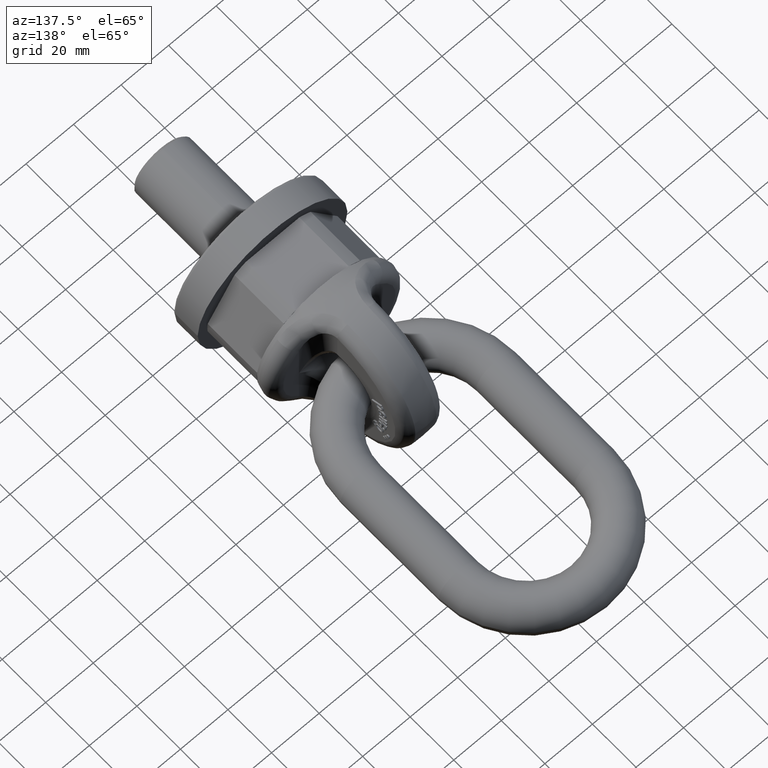
[diagram: clean part render]
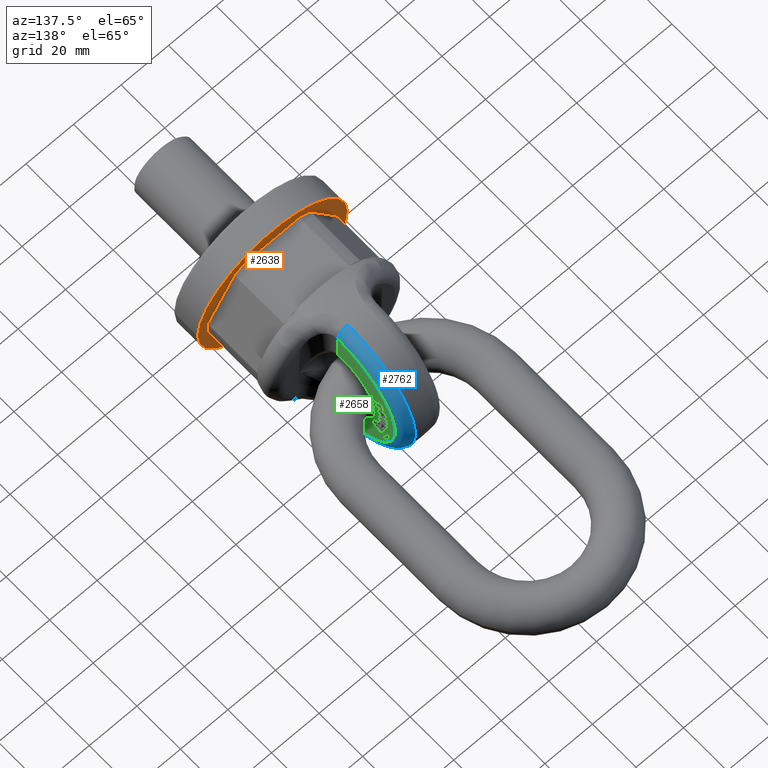
[diagram: same view with three faces highlighted in distinct colors, each labeled with its STEP entity id]
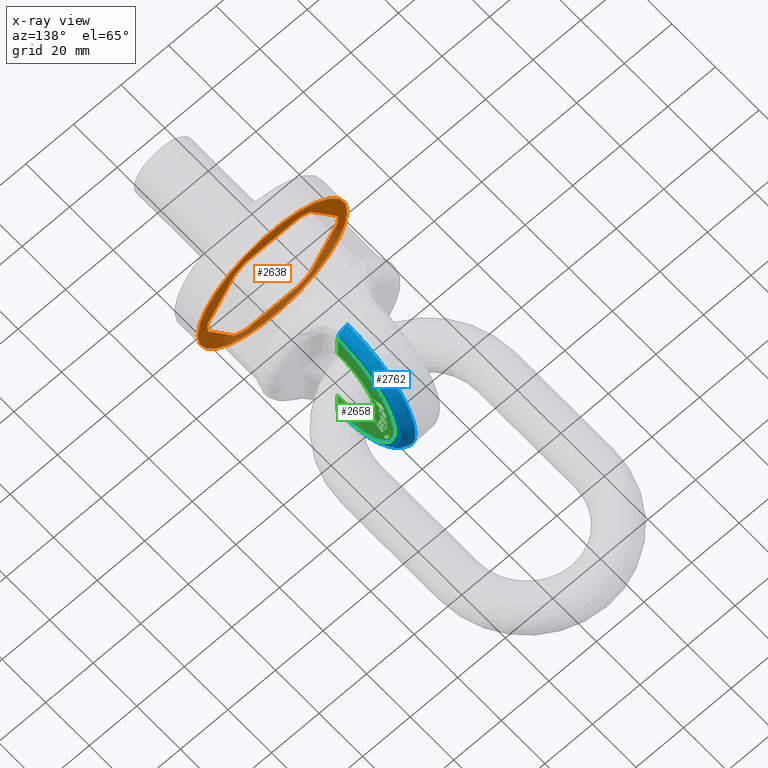
[diagram: x-ray of the same camera — body ghosted, the three highlighted faces saturated]
A machine part, auxiliary view with three faces highlighted in distinct colors.
The next image is the same camera in x-ray (body ghosted, the three faces saturated) — at least one of them is partly hidden behind the body in this view.
Their STEP definitions:

[orange] entity #2638 — the highlighted planar face has unit normal (-0, 1, 0).
#2033=LINE('',#6569,#2289);
#2034=LINE('',#6574,#2290);
#2035=LINE('',#6578,#2291);
#2036=LINE('',#6582,#2292);
#2037=LINE('',#6586,#2293);
#2038=LINE('',#6590,#2294);
#2289=VECTOR('',#5811,1.);
#2290=VECTOR('',#5814,1.);
#2291=VECTOR('',#5817,1.);
#2292=VECTOR('',#5820,1.);
#2293=VECTOR('',#5823,1.);
#2294=VECTOR('',#5826,1.);
#2638=ADVANCED_FACE('',(#2987,#2988),#2881,.T.);
#2881=PLANE('',#5606);
#2987=FACE_BOUND('',#3059,.T.);
#2988=FACE_BOUND('',#3060,.T.);
#3059=EDGE_LOOP('',(#3345));
#3060=EDGE_LOOP('',(#3346,#3347,#3348,#3349,#3350,#3351,#3352,#3353,#3354,
#3355,#3356,#3357));
#3345=ORIENTED_EDGE('',*,*,#4935,.F.);
#3346=ORIENTED_EDGE('',*,*,#4936,.F.);
#3347=ORIENTED_EDGE('',*,*,#4937,.T.);
#3348=ORIENTED_EDGE('',*,*,#4938,.F.);
#3349=ORIENTED_EDGE('',*,*,#4939,.T.);
#3350=ORIENTED_EDGE('',*,*,#4940,.F.);
#3351=ORIENTED_EDGE('',*,*,#4941,.T.);
#3352=ORIENTED_EDGE('',*,*,#4942,.F.);
#3353=ORIENTED_EDGE('',*,*,#4943,.T.);
#3354=ORIENTED_EDGE('',*,*,#4944,.F.);
#3355=ORIENTED_EDGE('',*,*,#4945,.T.);
#3356=ORIENTED_EDGE('',*,*,#4946,.F.);
#3357=ORIENTED_EDGE('',*,*,#4947,.T.);
#4537=VERTEX_POINT('',#6568);
#4538=VERTEX_POINT('',#6570);
#4539=VERTEX_POINT('',#6571);
#4540=VERTEX_POINT('',#6573);
#4541=VERTEX_POINT('',#6575);
#4542=VERTEX_POINT('',#6577);
#4543=VERTEX_POINT('',#6579);
#4544=VERTEX_POINT('',#6581);
#4545=VERTEX_POINT('',#6583);
#4546=VERTEX_POINT('',#6585);
#4547=VERTEX_POINT('',#6587);
#4548=VERTEX_POINT('',#6589);
#4549=VERTEX_POINT('',#6591);
#4935=EDGE_CURVE('',#4537,#4537,#5531,.T.);
#4936=EDGE_CURVE('',#4538,#4539,#2033,.T.);
#4937=EDGE_CURVE('',#4538,#4540,#5532,.T.);
#4938=EDGE_CURVE('',#4541,#4540,#2034,.T.);
#4939=EDGE_CURVE('',#4541,#4542,#5533,.T.);
#4940=EDGE_CURVE('',#4543,#4542,#2035,.T.);
#4941=EDGE_CURVE('',#4543,#4544,#5534,.T.);
#4942=EDGE_CURVE('',#4545,#4544,#2036,.T.);
#4943=EDGE_CURVE('',#4545,#4546,#5535,.T.);
#4944=EDGE_CURVE('',#4547,#4546,#2037,.T.);
#4945=EDGE_CURVE('',#4547,#4548,#5536,.T.);
#4946=EDGE_CURVE('',#4549,#4548,#2038,.T.);
#4947=EDGE_CURVE('',#4549,#4539,#5537,.T.);
#5531=CIRCLE('',#5599,31.5);
#5532=CIRCLE('',#5600,27.4241377865072);
#5533=CIRCLE('',#5601,27.4241377865072);
#5534=CIRCLE('',#5602,27.4241377865072);
#5535=CIRCLE('',#5603,27.4241377865072);
#5536=CIRCLE('',#5604,27.4241377865072);
#5537=CIRCLE('',#5605,27.4241377865072);
#5599=AXIS2_PLACEMENT_3D('',#6567,#5809,#5810);
#5600=AXIS2_PLACEMENT_3D('',#6572,#5812,#5813);
#5601=AXIS2_PLACEMENT_3D('',#6576,#5815,#5816);
#5602=AXIS2_PLACEMENT_3D('',#6580,#5818,#5819);
#5603=AXIS2_PLACEMENT_3D('',#6584,#5821,#5822);
#5604=AXIS2_PLACEMENT_3D('',#6588,#5824,#5825);
#5605=AXIS2_PLACEMENT_3D('',#6592,#5827,#5828);
#5606=AXIS2_PLACEMENT_3D('',#6593,#5829,#5830);
#5809=DIRECTION('',(4.23223526175924E-17,-1.,0.));
#5810=DIRECTION('',(1.,5.50705865389463E-17,0.));
#5811=DIRECTION('',(0.499999999999999,2.11611763087961E-17,-0.866025403784439));
#5812=DIRECTION('',(4.23223526175924E-17,-1.,0.));
#5813=DIRECTION('',(-1.,-6.32553515257751E-17,0.));
#5814=DIRECTION('',(1.,4.23223526175924E-17,0.));
#5815=DIRECTION('',(4.23223526175924E-17,-1.,0.));
#5816=DIRECTION('',(-1.,-6.32553515257751E-17,0.));
#5817=DIRECTION('',(0.499999999999999,2.11611763087961E-17,0.866025403784439));
#5818=DIRECTION('',(4.23223526175924E-17,-1.,0.));
#5819=DIRECTION('',(-1.,-6.32553515257751E-17,0.));
#5820=DIRECTION('',(-0.499999999999999,-2.11611763087961E-17,0.866025403784439));
#5821=DIRECTION('',(4.23223526175924E-17,-1.,0.));
#5822=DIRECTION('',(-1.,-6.32553515257751E-17,0.));
#5823=DIRECTION('',(-1.,-4.23223526175924E-17,0.));
#5824=DIRECTION('',(4.23223526175924E-17,-1.,0.));
#5825=DIRECTION('',(-1.,-6.32553515257751E-17,0.));
#5826=DIRECTION('',(-0.499999999999999,-2.11611763087961E-17,-0.866025403784439));
#5827=DIRECTION('',(4.23223526175924E-17,-1.,0.));
#5828=DIRECTION('',(-1.,-6.32553515257751E-17,0.));
#5829=DIRECTION('',(-4.23223526175924E-17,1.,0.));
#5830=DIRECTION('',(-1.,-4.16333634234434E-17,0.));
#6567=CARTESIAN_POINT('',(-4.79653329666047E-16,11.3333333333333,0.));
#6568=CARTESIAN_POINT('',(31.5,11.3333333333333,0.));
#6569=CARTESIAN_POINT('',(29.5256350946109,11.3333333333333,-1.13990010960493));
#6570=CARTESIAN_POINT('',(16.0140729035823,11.3333333333333,22.2628120948833));
#6571=CARTESIAN_POINT('',(27.2871972856396,11.3333333333333,2.73718790511658));
#6572=CARTESIAN_POINT('',(-2.77586607806733E-16,11.3333333333333,0.));
#6573=CARTESIAN_POINT('',(11.2731243820572,11.3333333333333,25.));
#6574=CARTESIAN_POINT('',(31.5,11.3333333333333,25.));
#6575=CARTESIAN_POINT('',(-11.2731243820572,11.3333333333333,25.));
#6576=CARTESIAN_POINT('',(-2.77586607806733E-16,11.3333333333333,0.));
#6577=CARTESIAN_POINT('',(-16.0140729035823,11.3333333333333,22.2628120948833));
#6578=CARTESIAN_POINT('',(-13.775635094611,11.3333333333333,26.1399001096048));
#6579=CARTESIAN_POINT('',(-27.2871972856396,11.3333333333333,2.73718790511658));
#6580=CARTESIAN_POINT('',(-2.77586607806733E-16,11.3333333333333,0.));
#6581=CARTESIAN_POINT('',(-27.2871972856396,11.3333333333333,-2.73718790511658));
#6582=CARTESIAN_POINT('',(-13.775635094611,11.3333333333333,-26.1399001096048));
#6583=CARTESIAN_POINT('',(-16.0140729035823,11.3333333333333,-22.2628120948833));
#6584=CARTESIAN_POINT('',(-2.77586607806733E-16,11.3333333333333,0.));
#6585=CARTESIAN_POINT('',(-11.2731243820572,11.3333333333333,-25.));
#6586=CARTESIAN_POINT('',(31.5,11.3333333333333,-25.));
#6587=CARTESIAN_POINT('',(11.2731243820572,11.3333333333333,-25.));
#6588=CARTESIAN_POINT('',(-2.77586607806733E-16,11.3333333333333,0.));
#6589=CARTESIAN_POINT('',(16.0140729035823,11.3333333333333,-22.2628120948833));
#6590=CARTESIAN_POINT('',(29.5256350946109,11.3333333333333,1.13990010960493));
#6591=CARTESIAN_POINT('',(27.2871972856396,11.3333333333333,-2.73718790511658));
#6592=CARTESIAN_POINT('',(-2.77586607806733E-16,11.3333333333333,0.));
#6593=CARTESIAN_POINT('',(31.5,11.3333333333333,0.));

[blue] entity #2762 — the highlighted toroidal blend (fillet) surface has major radius 26.4858 mm and minor (blend) radius 4.75 mm.
#1790=TOROIDAL_SURFACE('',#5714,26.4858452762981,4.75);
#1906=FACE_OUTER_BOUND('',#3206,.T.);
#2762=ADVANCED_FACE('',(#1906),#1790,.T.);
#3206=EDGE_LOOP('',(#3964,#3965,#3966,#3967));
#3964=ORIENTED_EDGE('',*,*,#5253,.T.);
#3965=ORIENTED_EDGE('',*,*,#5064,.F.);
#3966=ORIENTED_EDGE('',*,*,#5256,.F.);
#3967=ORIENTED_EDGE('',*,*,#5003,.F.);
#4590=VERTEX_POINT('',#6781);
#4593=VERTEX_POINT('',#6786);
#4651=VERTEX_POINT('',#7037);
#4652=VERTEX_POINT('',#7039);
#5003=EDGE_CURVE('',#4593,#4590,#5552,.T.);
#5064=EDGE_CURVE('',#4651,#4652,#5556,.T.);
#5253=EDGE_CURVE('',#4593,#4652,#5566,.T.);
#5256=EDGE_CURVE('',#4590,#4651,#5569,.T.);
#5552=CIRCLE('',#5640,26.4858452762981);
#5556=CIRCLE('',#5647,31.188939297323);
#5566=CIRCLE('',#5710,4.75);
#5569=CIRCLE('',#5713,4.75);
#5640=AXIS2_PLACEMENT_3D('',#6787,#5923,#5924);
#5647=AXIS2_PLACEMENT_3D('',#7038,#5965,#5966);
#5710=AXIS2_PLACEMENT_3D('',#8088,#6217,#6218);
#5713=AXIS2_PLACEMENT_3D('',#8127,#6223,#6224);
#5714=AXIS2_PLACEMENT_3D('',#8128,#6225,#6226);
#5923=DIRECTION('',(1.,-3.03576608295941E-16,0.));
#5924=DIRECTION('',(3.27481237219413E-16,1.,0.));
#5965=DIRECTION('',(-1.,3.03576608295941E-16,0.));
#5966=DIRECTION('',(-3.05909060481944E-16,-1.,0.));
#6217=DIRECTION('',(0.,1.,0.));
#6218=DIRECTION('',(0.,0.,1.));
#6223=DIRECTION('',(0.,-1.,0.));
#6224=DIRECTION('',(0.,0.,-1.));
#6225=DIRECTION('',(1.,-3.03576608295941E-16,0.));
#6226=DIRECTION('',(3.05449685560845E-16,1.,0.));
#6781=CARTESIAN_POINT('',(8.49999999999999,50.5,26.4858452762981));
#6786=CARTESIAN_POINT('',(8.49999999999999,50.5,-26.4858452762981));
#6787=CARTESIAN_POINT('',(8.5,50.5,0.));
#7037=CARTESIAN_POINT('',(4.41588785046729,50.5,31.188939297323));
#7038=CARTESIAN_POINT('',(4.41588785046729,50.5,0.));
#7039=CARTESIAN_POINT('',(4.41588785046729,50.5,-31.188939297323));
#8088=CARTESIAN_POINT('',(3.75,50.5,-26.4858452762981));
#8127=CARTESIAN_POINT('',(3.75,50.5,26.4858452762981));
#8128=CARTESIAN_POINT('',(3.75,50.5,0.));

[green] entity #2658 — the highlighted planar face has unit normal (1, -0, 0).
#308=B_SPLINE_CURVE_WITH_KNOTS('',3,(#6660,#6661,#6662,#6663,#6664,#6665),
 .UNSPECIFIED.,.F.,.F.,(4,2,4),(0.,0.670501232539036,1.),.UNSPECIFIED.);
#309=B_SPLINE_CURVE_WITH_KNOTS('',3,(#6667,#6668,#6669,#6670),
 .UNSPECIFIED.,.F.,.F.,(4,4),(0.,1.),.UNSPECIFIED.);
#310=B_SPLINE_CURVE_WITH_KNOTS('',3,(#6672,#6673,#6674,#6675,#6676,#6677),
 .UNSPECIFIED.,.F.,.F.,(4,2,4),(0.,0.470198675496683,1.),.UNSPECIFIED.);
#311=B_SPLINE_CURVE_WITH_KNOTS('',3,(#6679,#6680,#6681,#6682),
 .UNSPECIFIED.,.F.,.F.,(4,4),(0.,1.),.UNSPECIFIED.);
#312=B_SPLINE_CURVE_WITH_KNOTS('',3,(#6686,#6687,#6688,#6689),
 .UNSPECIFIED.,.F.,.F.,(4,4),(0.,1.),.UNSPECIFIED.);
#313=B_SPLINE_CURVE_WITH_KNOTS('',3,(#6691,#6692,#6693,#6694,#6695,#6696),
 .UNSPECIFIED.,.F.,.F.,(4,2,4),(0.,0.444196428571435,1.),.UNSPECIFIED.);
#314=B_SPLINE_CURVE_WITH_KNOTS('',3,(#6698,#6699,#6700,#6701,#6702,#6703),
 .UNSPECIFIED.,.F.,.F.,(4,2,4),(0.,0.499999999999985,1.),.UNSPECIFIED.);
#315=B_SPLINE_CURVE_WITH_KNOTS('',3,(#6705,#6706,#6707,#6708,#6709,#6710,
#6711,#6712,#6713,#6714,#6715,#6716,#6717,#6718),.UNSPECIFIED.,.F.,.F.,
(4,2,2,2,2,2,4),(0.,0.149537296690972,0.323681996634889,0.497826696578806,
0.672812675266409,0.847798653954011,1.),.UNSPECIFIED.);
#316=B_SPLINE_CURVE_WITH_KNOTS('',3,(#6723,#6724,#6725,#6726),
 .UNSPECIFIED.,.F.,.F.,(4,4),(0.,1.),.UNSPECIFIED.);
#317=B_SPLINE_CURVE_WITH_KNOTS('',3,(#6731,#6732,#6733,#6734),
 .UNSPECIFIED.,.F.,.F.,(4,4),(0.,1.),.UNSPECIFIED.);
#318=B_SPLINE_CURVE_WITH_KNOTS('',3,(#6736,#6737,#6738,#6739,#6740,#6741),
 .UNSPECIFIED.,.F.,.F.,(4,2,4),(0.,0.565320665083137,1.),.UNSPECIFIED.);
#319=B_SPLINE_CURVE_WITH_KNOTS('',3,(#6743,#6744,#6745,#6746),
 .UNSPECIFIED.,.F.,.F.,(4,4),(0.,1.),.UNSPECIFIED.);
#320=B_SPLINE_CURVE_WITH_KNOTS('',3,(#6750,#6751,#6752,#6753),
 .UNSPECIFIED.,.F.,.F.,(4,4),(0.,1.),.UNSPECIFIED.);
#321=B_SPLINE_CURVE_WITH_KNOTS('',3,(#6755,#6756,#6757,#6758,#6759,#6760),
 .UNSPECIFIED.,.F.,.F.,(4,2,4),(0.,0.429530201342285,1.),.UNSPECIFIED.);
#322=B_SPLINE_CURVE_WITH_KNOTS('',3,(#6762,#6763,#6764,#6765,#6766,#6767,
#6768,#6769,#6770,#6771,#6772,#6773),.UNSPECIFIED.,.F.,.F.,(4,2,2,2,2,4),
(0.,0.25386618568364,0.504362466247584,0.754858746811529,0.877429373405763,
1.),.UNSPECIFIED.);
#323=B_SPLINE_CURVE_WITH_KNOTS('',3,(#6797,#6798,#6799,#6800),
 .UNSPECIFIED.,.F.,.F.,(4,4),(0.,1.),.UNSPECIFIED.);
#324=B_SPLINE_CURVE_WITH_KNOTS('',3,(#6802,#6803,#6804,#6805),
 .UNSPECIFIED.,.F.,.F.,(4,4),(0.,1.),.UNSPECIFIED.);
#325=B_SPLINE_CURVE_WITH_KNOTS('',3,(#6827,#6828,#6829,#6830),
 .UNSPECIFIED.,.F.,.F.,(4,4),(0.,1.),.UNSPECIFIED.);
#326=B_SPLINE_CURVE_WITH_KNOTS('',3,(#6835,#6836,#6837,#6838),
 .UNSPECIFIED.,.F.,.F.,(4,4),(0.,1.),.UNSPECIFIED.);
#327=B_SPLINE_CURVE_WITH_KNOTS('',3,(#6843,#6844,#6845,#6846),
 .UNSPECIFIED.,.F.,.F.,(4,4),(0.,1.),.UNSPECIFIED.);
#328=B_SPLINE_CURVE_WITH_KNOTS('',3,(#6848,#6849,#6850,#6851,#6852,#6853,
#6854,#6855,#6856,#6857),.UNSPECIFIED.,.F.,.F.,(4,2,2,2,4),(0.,0.296954694318537,
0.533565653962718,0.771641518085912,1.),.UNSPECIFIED.);
#329=B_SPLINE_CURVE_WITH_KNOTS('',3,(#6859,#6860,#6861,#6862),
 .UNSPECIFIED.,.F.,.F.,(4,4),(0.,1.),.UNSPECIFIED.);
#330=B_SPLINE_CURVE_WITH_KNOTS('',3,(#6866,#6867,#6868,#6869),
 .UNSPECIFIED.,.F.,.F.,(4,4),(0.,1.),.UNSPECIFIED.);
#331=B_SPLINE_CURVE_WITH_KNOTS('',3,(#6871,#6872,#6873,#6874),
 .UNSPECIFIED.,.F.,.F.,(4,4),(0.,1.),.UNSPECIFIED.);
#332=B_SPLINE_CURVE_WITH_KNOTS('',3,(#6876,#6877,#6878,#6879),
 .UNSPECIFIED.,.F.,.F.,(4,4),(0.,1.),.UNSPECIFIED.);
#333=B_SPLINE_CURVE_WITH_KNOTS('',3,(#6881,#6882,#6883,#6884),
 .UNSPECIFIED.,.F.,.F.,(4,4),(0.,1.),.UNSPECIFIED.);
#334=B_SPLINE_CURVE_WITH_KNOTS('',3,(#6886,#6887,#6888,#6889,#6890,#6891),
 .UNSPECIFIED.,.F.,.F.,(4,2,4),(0.,0.440217391304348,1.),.UNSPECIFIED.);
#335=B_SPLINE_CURVE_WITH_KNOTS('',3,(#6893,#6894,#6895,#6896),
 .UNSPECIFIED.,.F.,.F.,(4,4),(0.,1.),.UNSPECIFIED.);
#336=B_SPLINE_CURVE_WITH_KNOTS('',3,(#6900,#6901,#6902,#6903),
 .UNSPECIFIED.,.F.,.F.,(4,4),(0.,1.),.UNSPECIFIED.);
#337=B_SPLINE_CURVE_WITH_KNOTS('',3,(#6905,#6906,#6907,#6908,#6909,#6910),
 .UNSPECIFIED.,.F.,.F.,(4,2,4),(0.,0.523876404494379,1.),.UNSPECIFIED.);
#338=B_SPLINE_CURVE_WITH_KNOTS('',3,(#6912,#6913,#6914,#6915),
 .UNSPECIFIED.,.F.,.F.,(4,4),(0.,1.),.UNSPECIFIED.);
#339=B_SPLINE_CURVE_WITH_KNOTS('',3,(#6917,#6918,#6919,#6920,#6921,#6922,
#6923,#6924),.UNSPECIFIED.,.F.,.F.,(4,2,2,4),(0.,0.269230769230768,0.527644230769233,
1.),.UNSPECIFIED.);
#340=B_SPLINE_CURVE_WITH_KNOTS('',3,(#6928,#6929,#6930,#6931),
 .UNSPECIFIED.,.F.,.F.,(4,4),(0.,1.),.UNSPECIFIED.);
#341=B_SPLINE_CURVE_WITH_KNOTS('',3,(#6933,#6934,#6935,#6936),
 .UNSPECIFIED.,.F.,.F.,(4,4),(0.,1.),.UNSPECIFIED.);
#342=B_SPLINE_CURVE_WITH_KNOTS('',3,(#6938,#6939,#6940,#6941,#6942,#6943,
#6944,#6945,#6946,#6947),.UNSPECIFIED.,.F.,.F.,(4,2,2,2,4),(0.,0.245990994549331,
0.507925849856491,0.76986070516365,1.),.UNSPECIFIED.);
#2057=LINE('',#6657,#2313);
#2058=LINE('',#6684,#2314);
#2059=LINE('',#6720,#2315);
#2060=LINE('',#6722,#2316);
#2061=LINE('',#6729,#2317);
#2062=LINE('',#6748,#2318);
#2063=LINE('',#6780,#2319);
#2064=LINE('',#6785,#2320);
#2065=LINE('',#6788,#2321);
#2066=LINE('',#6791,#2322);
#2067=LINE('',#6793,#2323);
#2068=LINE('',#6795,#2324);
#2069=LINE('',#6807,#2325);
#2070=LINE('',#6809,#2326);
#2071=LINE('',#6811,#2327);
#2072=LINE('',#6813,#2328);
#2073=LINE('',#6815,#2329);
#2074=LINE('',#6817,#2330);
#2075=LINE('',#6819,#2331);
#2076=LINE('',#6821,#2332);
#2077=LINE('',#6823,#2333);
#2078=LINE('',#6825,#2334);
#2079=LINE('',#6832,#2335);
#2080=LINE('',#6834,#2336);
#2081=LINE('',#6841,#2337);
#2082=LINE('',#6864,#2338);
#2083=LINE('',#6898,#2339);
#2084=LINE('',#6925,#2340);
#2085=LINE('',#6949,#2341);
#2086=LINE('',#6951,#2342);
#2087=LINE('',#6953,#2343);
#2088=LINE('',#6955,#2344);
#2089=LINE('',#6957,#2345);
#2090=LINE('',#6959,#2346);
#2313=VECTOR('',#5907,1.);
#2314=VECTOR('',#5908,1.);
#2315=VECTOR('',#5909,1.);
#2316=VECTOR('',#5910,1.);
#2317=VECTOR('',#5911,1.);
#2318=VECTOR('',#5912,1.);
#2319=VECTOR('',#5919,1.);
#2320=VECTOR('',#5922,1.);
#2321=VECTOR('',#5925,1.);
#2322=VECTOR('',#5926,1.);
#2323=VECTOR('',#5927,1.);
#2324=VECTOR('',#5928,1.);
#2325=VECTOR('',#5929,1.);
#2326=VECTOR('',#5930,1.);
#2327=VECTOR('',#5931,1.);
#2328=VECTOR('',#5932,1.);
#2329=VECTOR('',#5933,1.);
#2330=VECTOR('',#5934,1.);
#2331=VECTOR('',#5935,1.);
#2332=VECTOR('',#5936,1.);
#2333=VECTOR('',#5937,1.);
#2334=VECTOR('',#5938,1.);
#2335=VECTOR('',#5939,1.);
#2336=VECTOR('',#5940,1.);
#2337=VECTOR('',#5941,1.);
#2338=VECTOR('',#5942,1.);
#2339=VECTOR('',#5943,1.);
#2340=VECTOR('',#5944,1.);
#2341=VECTOR('',#5945,1.);
#2342=VECTOR('',#5946,1.);
#2343=VECTOR('',#5947,1.);
#2344=VECTOR('',#5948,1.);
#2345=VECTOR('',#5949,1.);
#2346=VECTOR('',#5950,1.);
#2658=ADVANCED_FACE('',(#2999,#3000,#3001,#3002,#3003,#3004,#3005,#3006,
#3007),#2890,.T.);
#2890=PLANE('',#5641);
#2999=FACE_BOUND('',#3085,.T.);
#3000=FACE_BOUND('',#3086,.T.);
#3001=FACE_BOUND('',#3087,.T.);
#3002=FACE_BOUND('',#3088,.T.);
#3003=FACE_BOUND('',#3089,.T.);
#3004=FACE_BOUND('',#3090,.T.);
#3005=FACE_BOUND('',#3091,.T.);
#3006=FACE_BOUND('',#3092,.T.);
#3007=FACE_BOUND('',#3093,.T.);
#3085=EDGE_LOOP('',(#3429,#3430,#3431,#3432,#3433,#3434,#3435,#3436,#3437,
#3438,#3439,#3440));
#3086=EDGE_LOOP('',(#3441,#3442,#3443,#3444,#3445,#3446,#3447,#3448,#3449));
#3087=EDGE_LOOP('',(#3450));
#3088=EDGE_LOOP('',(#3451));
#3089=EDGE_LOOP('',(#3452));
#3090=EDGE_LOOP('',(#3453,#3454,#3455,#3456));
#3091=EDGE_LOOP('',(#3457,#3458,#3459,#3460,#3461,#3462,#3463,#3464,#3465,
#3466,#3467,#3468,#3469,#3470,#3471,#3472,#3473,#3474,#3475));
#3092=EDGE_LOOP('',(#3476,#3477,#3478,#3479,#3480,#3481,#3482,#3483,#3484,
#3485,#3486,#3487,#3488,#3489,#3490,#3491,#3492));
#3093=EDGE_LOOP('',(#3493,#3494,#3495,#3496,#3497,#3498,#3499,#3500,#3501,
#3502));
#3429=ORIENTED_EDGE('',*,*,#4976,.T.);
#3430=ORIENTED_EDGE('',*,*,#4977,.T.);
#3431=ORIENTED_EDGE('',*,*,#4978,.T.);
#3432=ORIENTED_EDGE('',*,*,#4979,.T.);
#3433=ORIENTED_EDGE('',*,*,#4980,.T.);
#3434=ORIENTED_EDGE('',*,*,#4981,.T.);
#3435=ORIENTED_EDGE('',*,*,#4982,.T.);
#3436=ORIENTED_EDGE('',*,*,#4983,.T.);
#3437=ORIENTED_EDGE('',*,*,#4984,.T.);
#3438=ORIENTED_EDGE('',*,*,#4985,.T.);
#3439=ORIENTED_EDGE('',*,*,#4986,.T.);
#3440=ORIENTED_EDGE('',*,*,#4987,.T.);
#3441=ORIENTED_EDGE('',*,*,#4988,.T.);
#3442=ORIENTED_EDGE('',*,*,#4989,.T.);
#3443=ORIENTED_EDGE('',*,*,#4990,.T.);
#3444=ORIENTED_EDGE('',*,*,#4991,.T.);
#3445=ORIENTED_EDGE('',*,*,#4992,.T.);
#3446=ORIENTED_EDGE('',*,*,#4993,.T.);
#3447=ORIENTED_EDGE('',*,*,#4994,.T.);
#3448=ORIENTED_EDGE('',*,*,#4995,.T.);
#3449=ORIENTED_EDGE('',*,*,#4996,.T.);
#3450=ORIENTED_EDGE('',*,*,#4997,.T.);
#3451=ORIENTED_EDGE('',*,*,#4998,.T.);
#3452=ORIENTED_EDGE('',*,*,#4999,.T.);
#3453=ORIENTED_EDGE('',*,*,#5000,.T.);
#3454=ORIENTED_EDGE('',*,*,#5001,.T.);
#3455=ORIENTED_EDGE('',*,*,#5002,.T.);
#3456=ORIENTED_EDGE('',*,*,#5003,.T.);
#3457=ORIENTED_EDGE('',*,*,#5004,.T.);
#3458=ORIENTED_EDGE('',*,*,#5005,.T.);
#3459=ORIENTED_EDGE('',*,*,#5006,.T.);
#3460=ORIENTED_EDGE('',*,*,#5007,.T.);
#3461=ORIENTED_EDGE('',*,*,#5008,.T.);
#3462=ORIENTED_EDGE('',*,*,#5009,.T.);
#3463=ORIENTED_EDGE('',*,*,#5010,.T.);
#3464=ORIENTED_EDGE('',*,*,#5011,.T.);
#3465=ORIENTED_EDGE('',*,*,#5012,.T.);
#3466=ORIENTED_EDGE('',*,*,#5013,.T.);
#3467=ORIENTED_EDGE('',*,*,#5014,.T.);
#3468=ORIENTED_EDGE('',*,*,#5015,.T.);
#3469=ORIENTED_EDGE('',*,*,#5016,.T.);
#3470=ORIENTED_EDGE('',*,*,#5017,.T.);
#3471=ORIENTED_EDGE('',*,*,#5018,.T.);
#3472=ORIENTED_EDGE('',*,*,#5019,.T.);
#3473=ORIENTED_EDGE('',*,*,#5020,.T.);
#3474=ORIENTED_EDGE('',*,*,#5021,.T.);
#3475=ORIENTED_EDGE('',*,*,#5022,.T.);
#3476=ORIENTED_EDGE('',*,*,#5023,.T.);
#3477=ORIENTED_EDGE('',*,*,#5024,.T.);
#3478=ORIENTED_EDGE('',*,*,#5025,.T.);
#3479=ORIENTED_EDGE('',*,*,#5026,.T.);
#3480=ORIENTED_EDGE('',*,*,#5027,.T.);
#3481=ORIENTED_EDGE('',*,*,#5028,.T.);
#3482=ORIENTED_EDGE('',*,*,#5029,.T.);
#3483=ORIENTED_EDGE('',*,*,#5030,.T.);
#3484=ORIENTED_EDGE('',*,*,#5031,.T.);
#3485=ORIENTED_EDGE('',*,*,#5032,.T.);
#3486=ORIENTED_EDGE('',*,*,#5033,.T.);
#3487=ORIENTED_EDGE('',*,*,#5034,.T.);
#3488=ORIENTED_EDGE('',*,*,#5035,.T.);
#3489=ORIENTED_EDGE('',*,*,#5036,.T.);
#3490=ORIENTED_EDGE('',*,*,#5037,.T.);
#3491=ORIENTED_EDGE('',*,*,#5038,.T.);
#3492=ORIENTED_EDGE('',*,*,#5039,.T.);
#3493=ORIENTED_EDGE('',*,*,#5040,.T.);
#3494=ORIENTED_EDGE('',*,*,#5041,.T.);
#3495=ORIENTED_EDGE('',*,*,#5042,.T.);
#3496=ORIENTED_EDGE('',*,*,#5043,.T.);
#3497=ORIENTED_EDGE('',*,*,#5044,.T.);
#3498=ORIENTED_EDGE('',*,*,#5045,.T.);
#3499=ORIENTED_EDGE('',*,*,#5046,.T.);
#3500=ORIENTED_EDGE('',*,*,#5047,.T.);
#3501=ORIENTED_EDGE('',*,*,#5048,.T.);
#3502=ORIENTED_EDGE('',*,*,#5049,.T.);
#4566=VERTEX_POINT('',#6658);
#4567=VERTEX_POINT('',#6659);
#4568=VERTEX_POINT('',#6666);
#4569=VERTEX_POINT('',#6671);
#4570=VERTEX_POINT('',#6678);
#4571=VERTEX_POINT('',#6683);
#4572=VERTEX_POINT('',#6685);
#4573=VERTEX_POINT('',#6690);
#4574=VERTEX_POINT('',#6697);
#4575=VERTEX_POINT('',#6704);
#4576=VERTEX_POINT('',#6719);
#4577=VERTEX_POINT('',#6721);
#4578=VERTEX_POINT('',#6727);
#4579=VERTEX_POINT('',#6728);
#4580=VERTEX_POINT('',#6730);
#4581=VERTEX_POINT('',#6735);
#4582=VERTEX_POINT('',#6742);
#4583=VERTEX_POINT('',#6747);
#4584=VERTEX_POINT('',#6749);
#4585=VERTEX_POINT('',#6754);
#4586=VERTEX_POINT('',#6761);
#4587=VERTEX_POINT('',#6775);
#4588=VERTEX_POINT('',#6777);
#4589=VERTEX_POINT('',#6779);
#4590=VERTEX_POINT('',#6781);
#4591=VERTEX_POINT('',#6782);
#4592=VERTEX_POINT('',#6784);
#4593=VERTEX_POINT('',#6786);
#4594=VERTEX_POINT('',#6789);
#4595=VERTEX_POINT('',#6790);
#4596=VERTEX_POINT('',#6792);
#4597=VERTEX_POINT('',#6794);
#4598=VERTEX_POINT('',#6796);
#4599=VERTEX_POINT('',#6801);
#4600=VERTEX_POINT('',#6806);
#4601=VERTEX_POINT('',#6808);
#4602=VERTEX_POINT('',#6810);
#4603=VERTEX_POINT('',#6812);
#4604=VERTEX_POINT('',#6814);
#4605=VERTEX_POINT('',#6816);
#4606=VERTEX_POINT('',#6818);
#4607=VERTEX_POINT('',#6820);
#4608=VERTEX_POINT('',#6822);
#4609=VERTEX_POINT('',#6824);
#4610=VERTEX_POINT('',#6826);
#4611=VERTEX_POINT('',#6831);
#4612=VERTEX_POINT('',#6833);
#4613=VERTEX_POINT('',#6839);
#4614=VERTEX_POINT('',#6840);
#4615=VERTEX_POINT('',#6842);
#4616=VERTEX_POINT('',#6847);
#4617=VERTEX_POINT('',#6858);
#4618=VERTEX_POINT('',#6863);
#4619=VERTEX_POINT('',#6865);
#4620=VERTEX_POINT('',#6870);
#4621=VERTEX_POINT('',#6875);
#4622=VERTEX_POINT('',#6880);
#4623=VERTEX_POINT('',#6885);
#4624=VERTEX_POINT('',#6892);
#4625=VERTEX_POINT('',#6897);
#4626=VERTEX_POINT('',#6899);
#4627=VERTEX_POINT('',#6904);
#4628=VERTEX_POINT('',#6911);
#4629=VERTEX_POINT('',#6916);
#4630=VERTEX_POINT('',#6926);
#4631=VERTEX_POINT('',#6927);
#4632=VERTEX_POINT('',#6932);
#4633=VERTEX_POINT('',#6937);
#4634=VERTEX_POINT('',#6948);
#4635=VERTEX_POINT('',#6950);
#4636=VERTEX_POINT('',#6952);
#4637=VERTEX_POINT('',#6954);
#4638=VERTEX_POINT('',#6956);
#4639=VERTEX_POINT('',#6958);
#4976=EDGE_CURVE('',#4566,#4567,#2057,.T.);
#4977=EDGE_CURVE('',#4567,#4568,#308,.T.);
#4978=EDGE_CURVE('',#4568,#4569,#309,.T.);
#4979=EDGE_CURVE('',#4569,#4570,#310,.T.);
#4980=EDGE_CURVE('',#4570,#4571,#311,.T.);
#4981=EDGE_CURVE('',#4571,#4572,#2058,.T.);
#4982=EDGE_CURVE('',#4572,#4573,#312,.T.);
#4983=EDGE_CURVE('',#4573,#4574,#313,.T.);
#4984=EDGE_CURVE('',#4574,#4575,#314,.T.);
#4985=EDGE_CURVE('',#4575,#4576,#315,.T.);
#4986=EDGE_CURVE('',#4576,#4577,#2059,.T.);
#4987=EDGE_CURVE('',#4577,#4566,#2060,.T.);
#4988=EDGE_CURVE('',#4578,#4579,#316,.T.);
#4989=EDGE_CURVE('',#4579,#4580,#2061,.T.);
#4990=EDGE_CURVE('',#4580,#4581,#317,.T.);
#4991=EDGE_CURVE('',#4581,#4582,#318,.T.);
#4992=EDGE_CURVE('',#4582,#4583,#319,.T.);
#4993=EDGE_CURVE('',#4583,#4584,#2062,.T.);
#4994=EDGE_CURVE('',#4584,#4585,#320,.T.);
#4995=EDGE_CURVE('',#4585,#4586,#321,.T.);
#4996=EDGE_CURVE('',#4586,#4578,#322,.T.);
#4997=EDGE_CURVE('',#4587,#4587,#5548,.T.);
#4998=EDGE_CURVE('',#4588,#4588,#5549,.T.);
#4999=EDGE_CURVE('',#4589,#4589,#5550,.T.);
#5000=EDGE_CURVE('',#4590,#4591,#2063,.T.);
#5001=EDGE_CURVE('',#4591,#4592,#5551,.T.);
#5002=EDGE_CURVE('',#4592,#4593,#2064,.T.);
#5003=EDGE_CURVE('',#4593,#4590,#5552,.T.);
#5004=EDGE_CURVE('',#4594,#4595,#2065,.T.);
#5005=EDGE_CURVE('',#4595,#4596,#2066,.T.);
#5006=EDGE_CURVE('',#4596,#4597,#2067,.T.);
#5007=EDGE_CURVE('',#4597,#4598,#2068,.T.);
#5008=EDGE_CURVE('',#4598,#4599,#323,.T.);
#5009=EDGE_CURVE('',#4599,#4600,#324,.T.);
#5010=EDGE_CURVE('',#4600,#4601,#2069,.T.);
#5011=EDGE_CURVE('',#4601,#4602,#2070,.T.);
#5012=EDGE_CURVE('',#4602,#4603,#2071,.T.);
#5013=EDGE_CURVE('',#4603,#4604,#2072,.T.);
#5014=EDGE_CURVE('',#4604,#4605,#2073,.T.);
#5015=EDGE_CURVE('',#4605,#4606,#2074,.T.);
#5016=EDGE_CURVE('',#4606,#4607,#2075,.T.);
#5017=EDGE_CURVE('',#4607,#4608,#2076,.T.);
#5018=EDGE_CURVE('',#4608,#4609,#2077,.T.);
#5019=EDGE_CURVE('',#4609,#4610,#2078,.T.);
#5020=EDGE_CURVE('',#4610,#4611,#325,.T.);
#5021=EDGE_CURVE('',#4611,#4612,#2079,.T.);
#5022=EDGE_CURVE('',#4612,#4594,#2080,.T.);
#5023=EDGE_CURVE('',#4613,#4614,#326,.T.);
#5024=EDGE_CURVE('',#4614,#4615,#2081,.T.);
#5025=EDGE_CURVE('',#4615,#4616,#327,.T.);
#5026=EDGE_CURVE('',#4616,#4617,#328,.T.);
#5027=EDGE_CURVE('',#4617,#4618,#329,.T.);
#5028=EDGE_CURVE('',#4618,#4619,#2082,.T.);
#5029=EDGE_CURVE('',#4619,#4620,#330,.T.);
#5030=EDGE_CURVE('',#4620,#4621,#331,.T.);
#5031=EDGE_CURVE('',#4621,#4622,#332,.T.);
#5032=EDGE_CURVE('',#4622,#4623,#333,.T.);
#5033=EDGE_CURVE('',#4623,#4624,#334,.T.);
#5034=EDGE_CURVE('',#4624,#4625,#335,.T.);
#5035=EDGE_CURVE('',#4625,#4626,#2083,.T.);
#5036=EDGE_CURVE('',#4626,#4627,#336,.T.);
#5037=EDGE_CURVE('',#4627,#4628,#337,.T.);
#5038=EDGE_CURVE('',#4628,#4629,#338,.T.);
#5039=EDGE_CURVE('',#4629,#4613,#339,.T.);
#5040=EDGE_CURVE('',#4630,#4631,#2084,.T.);
#5041=EDGE_CURVE('',#4631,#4632,#340,.T.);
#5042=EDGE_CURVE('',#4632,#4633,#341,.T.);
#5043=EDGE_CURVE('',#4633,#4634,#342,.T.);
#5044=EDGE_CURVE('',#4634,#4635,#2085,.T.);
#5045=EDGE_CURVE('',#4635,#4636,#2086,.T.);
#5046=EDGE_CURVE('',#4636,#4637,#2087,.T.);
#5047=EDGE_CURVE('',#4637,#4638,#2088,.T.);
#5048=EDGE_CURVE('',#4638,#4639,#2089,.T.);
#5049=EDGE_CURVE('',#4639,#4630,#2090,.T.);
#5548=CIRCLE('',#5636,0.7125);
#5549=CIRCLE('',#5637,0.7125);
#5550=CIRCLE('',#5638,0.712499999999999);
#5551=CIRCLE('',#5639,15.25);
#5552=CIRCLE('',#5640,26.4858452762981);
#5636=AXIS2_PLACEMENT_3D('',#6774,#5913,#5914);
#5637=AXIS2_PLACEMENT_3D('',#6776,#5915,#5916);
#5638=AXIS2_PLACEMENT_3D('',#6778,#5917,#5918);
#5639=AXIS2_PLACEMENT_3D('',#6783,#5920,#5921);
#5640=AXIS2_PLACEMENT_3D('',#6787,#5923,#5924);
#5641=AXIS2_PLACEMENT_3D('',#6960,#5951,#5952);
#5907=DIRECTION('',(-1.24955384483683E-16,-0.411610713964728,-0.911359764390247));
#5908=DIRECTION('',(-1.65074590271973E-16,-0.543765842824919,-0.839236979748215));
#5909=DIRECTION('',(-1.2495538448387E-16,-0.411610713965345,-0.911359764389968));
#5910=DIRECTION('',(2.76667506210978E-16,0.911359764390243,-0.411610713964738));
#5911=DIRECTION('',(-6.85273532607299E-17,-0.225733312080245,0.974189135546729));
#5912=DIRECTION('',(3.2326053592723E-17,0.106484006703211,-0.994314415221076));
#5913=DIRECTION('',(-1.,3.03576608295941E-16,0.));
#5914=DIRECTION('',(0.,1.00000000000001,0.));
#5915=DIRECTION('',(-1.,3.03576608295941E-16,0.));
#5916=DIRECTION('',(0.,1.00000000000001,0.));
#5917=DIRECTION('',(-1.,3.03576608295941E-16,0.));
#5918=DIRECTION('',(0.,1.00000000000001,0.));
#5919=DIRECTION('',(0.,0.,-1.));
#5920=DIRECTION('',(-1.,3.03576608295941E-16,0.));
#5921=DIRECTION('',(3.41257077241339E-16,1.,0.));
#5922=DIRECTION('',(0.,0.,-1.));
#5923=DIRECTION('',(1.,-3.03576608295941E-16,0.));
#5924=DIRECTION('',(3.27481237219413E-16,1.,0.));
#5925=DIRECTION('',(1.67918334023276E-19,0.00055313330946626,-0.999999847021759));
#5926=DIRECTION('',(-2.89236188874974E-16,-0.9527617773271,0.303718612640888));
#5927=DIRECTION('',(-1.67918334019717E-19,-0.000553133309454534,0.999999847021759));
#5928=DIRECTION('',(2.93163173108926E-16,0.965697504674458,0.259669654494949));
#5929=DIRECTION('',(-1.67918334058276E-19,-0.00055313330958155,0.999999847021759));
#5930=DIRECTION('',(-2.93633911112557E-16,-0.967248144581378,0.253832674815282));
#5931=DIRECTION('',(-1.67918334029222E-19,-0.000553133309485844,0.999999847021759));
#5932=DIRECTION('',(2.89703300292552E-16,0.954300471036736,0.29884880956608));
#5933=DIRECTION('',(1.67918334026559E-19,0.000553133309477072,-0.999999847021759));
#5934=DIRECTION('',(-2.92302181185906E-16,-0.962861344379193,-0.269996354605562));
#5935=DIRECTION('',(2.94154869185898E-16,0.968964212483532,-0.247201041515138));
#5936=DIRECTION('',(2.92679303846597E-16,0.964103609594579,-0.265526326315685));
#5937=DIRECTION('',(1.67918334020659E-19,0.000553133309457637,-0.999999847021759));
#5938=DIRECTION('',(-2.93652020670518E-16,-0.967307798577983,-0.253605249965801));
#5939=DIRECTION('',(1.67918334058277E-19,0.000553133309581555,-0.999999847021759));
#5940=DIRECTION('',(2.90827793852628E-16,0.958004621914463,-0.286752758296282));
#5941=DIRECTION('',(6.82001429446792E-17,0.224655461194804,0.974438260617547));
#5942=DIRECTION('',(-2.4458036465394E-17,-0.0805662748611748,-0.996749254002728));
#5943=DIRECTION('',(1.05157675056698E-16,0.346395842706645,0.938088439410461));
#5944=DIRECTION('',(1.252613760016E-16,0.412618668825398,-0.910903855594407));
#5945=DIRECTION('',(-1.25261376001676E-16,-0.412618668825647,0.910903855594294));
#5946=DIRECTION('',(-2.76529102964994E-16,-0.910903855594235,-0.412618668825778));
#5947=DIRECTION('',(-1.25261376001715E-16,-0.412618668825776,0.910903855594236));
#5948=DIRECTION('',(2.76529102964993E-16,0.910903855594234,0.41261866882578));
#5949=DIRECTION('',(1.2526137600172E-16,0.412618668825792,-0.910903855594229));
#5950=DIRECTION('',(-2.76529102964994E-16,-0.910903855594236,-0.412618668825775));
#5951=DIRECTION('',(1.,-3.03576608295941E-16,0.));
#5952=DIRECTION('',(3.03576608295941E-16,1.,0.));
#6657=CARTESIAN_POINT('',(8.50000000000001,89.5018658792847,31.2618228044597));
#6658=CARTESIAN_POINT('',(8.5,71.1385923783373,-9.39685794283303));
#6659=CARTESIAN_POINT('',(8.5,70.9131399556497,-9.89603898902765));
#6660=CARTESIAN_POINT('',(8.50000000000001,70.9131399556497,-9.89603898902765));
#6661=CARTESIAN_POINT('',(8.50000000000001,70.0094739421483,-9.4879031160864));
#6662=CARTESIAN_POINT('',(8.50000000000001,69.1058079286471,-9.07976724314516));
#6663=CARTESIAN_POINT('',(8.50000000000001,67.7580609452756,-8.47106459930999));
#6664=CARTESIAN_POINT('',(8.50000000000001,67.4461876711481,-8.27594186532799));
#6665=CARTESIAN_POINT('',(8.50000000000001,67.2665220927633,-8.08626316825792));
#6666=CARTESIAN_POINT('',(8.50000000000001,67.2665220927633,-8.08626316825792));
#6667=CARTESIAN_POINT('',(8.50000000000001,67.2665220927633,-8.08626316825792));
#6668=CARTESIAN_POINT('',(8.50000000000001,67.0879639482185,-7.89708463769881));
#6669=CARTESIAN_POINT('',(8.50000000000001,66.9901949753217,-7.65892380402755));
#6670=CARTESIAN_POINT('',(8.50000000000001,66.9721973301782,-7.37403430627889));
#6671=CARTESIAN_POINT('',(8.50000000000001,66.9721973301782,-7.37403430627889));
#6672=CARTESIAN_POINT('',(8.50000000000001,66.9721973301782,-7.37403430627889));
#6673=CARTESIAN_POINT('',(8.50000000000001,66.953601173142,-7.08751782250191));
#6674=CARTESIAN_POINT('',(8.50000000000001,67.0168692670977,-6.78506470216113));
#6675=CARTESIAN_POINT('',(8.50000000000001,67.3242581233129,-6.10446571367005));
#6676=CARTESIAN_POINT('',(8.50000000000001,67.5387680859077,-5.83911672481041));
#6677=CARTESIAN_POINT('',(8.50000000000001,67.8055314998295,-5.67062797867765));
#6678=CARTESIAN_POINT('',(8.50000000000001,67.8055314998295,-5.67062797867765));
#6679=CARTESIAN_POINT('',(8.50000000000001,67.8055314998295,-5.67062797867765));
#6680=CARTESIAN_POINT('',(8.50000000000001,68.0716964018587,-5.50051224651657));
#6681=CARTESIAN_POINT('',(8.50000000000001,68.3836742130181,-5.4976081747285));
#6682=CARTESIAN_POINT('',(8.50000000000001,68.7413753433624,-5.65916195776774));
#6683=CARTESIAN_POINT('',(8.50000000000001,68.7413753433624,-5.65916195776774));
#6684=CARTESIAN_POINT('',(8.50000000000001,91.0567243204278,28.7818871163091));
#6685=CARTESIAN_POINT('',(8.5,68.4244824793996,-6.14824786407292));
#6686=CARTESIAN_POINT('',(8.50000000000001,68.4244824793996,-6.14824786407292));
#6687=CARTESIAN_POINT('',(8.50000000000001,68.2503142421757,-6.09400580525291));
#6688=CARTESIAN_POINT('',(8.50000000000001,68.0942195694026,-6.10897678561995));
#6689=CARTESIAN_POINT('',(8.50000000000001,67.9567073830277,-6.19203398565666));
#6690=CARTESIAN_POINT('',(8.50000000000001,67.9567073830277,-6.19203398565666));
#6691=CARTESIAN_POINT('',(8.50000000000001,67.9567073830277,-6.19203398565666));
#6692=CARTESIAN_POINT('',(8.50000000000001,67.8197937085455,-6.2767181717217));
#6693=CARTESIAN_POINT('',(8.50000000000001,67.6998461646741,-6.43011523046282));
#6694=CARTESIAN_POINT('',(8.50000000000001,67.4718491322495,-6.93493037424429));
#6695=CARTESIAN_POINT('',(8.50000000000001,67.4357044636709,-7.16552001846434));
#6696=CARTESIAN_POINT('',(8.50000000000001,67.4885203356229,-7.34674790008588));
#6697=CARTESIAN_POINT('',(8.50000000000001,67.4885203356229,-7.34674790008588));
#6698=CARTESIAN_POINT('',(8.50000000000001,67.4885203356229,-7.34674790008588));
#6699=CARTESIAN_POINT('',(8.50000000000001,67.5429525633622,-7.52734912870101));
#6700=CARTESIAN_POINT('',(8.50000000000001,67.6430334674278,-7.668873795282));
#6701=CARTESIAN_POINT('',(8.50000000000001,67.9399402074662,-7.87351703138476));
#6702=CARTESIAN_POINT('',(8.50000000000001,68.1559184240054,-7.988699153813));
#6703=CARTESIAN_POINT('',(8.50000000000001,68.4394214870646,-8.1167417806181));
#6704=CARTESIAN_POINT('',(8.50000000000001,68.4394214870646,-8.1167417806181));
#6705=CARTESIAN_POINT('',(8.5,68.4394214870646,-8.1167417806181));
#6706=CARTESIAN_POINT('',(8.5,68.2706336597802,-7.75832202628784));
#6707=CARTESIAN_POINT('',(8.5,68.2682657696109,-7.40044801237194));
#6708=CARTESIAN_POINT('',(8.5,68.6163683816162,-6.62970346249132));
#6709=CARTESIAN_POINT('',(8.5,68.9176202802898,-6.3641875308402));
#6710=CARTESIAN_POINT('',(8.5,69.7470434778204,-6.13371660805431));
#6711=CARTESIAN_POINT('',(8.5,70.183383621125,-6.1801967548847));
#6712=CARTESIAN_POINT('',(8.5,71.1025537083873,-6.59533495897935));
#6713=CARTESIAN_POINT('',(8.5,71.4318696805768,-6.89058924615746));
#6714=CARTESIAN_POINT('',(8.5,71.8245159028171,-7.65672116376616));
#6715=CARTESIAN_POINT('',(8.5,71.8257726223747,-8.06429016400004));
#6716=CARTESIAN_POINT('',(8.5,71.4603666641586,-8.87334657747122));
#6717=CARTESIAN_POINT('',(8.5,71.1735437599022,-9.11281917372739));
#6718=CARTESIAN_POINT('',(8.5,70.768770447973,-9.21490648092741));
#6719=CARTESIAN_POINT('',(8.5,70.768770447973,-9.21490648092741));
#6720=CARTESIAN_POINT('',(8.50000000000001,89.1264458075246,31.431379251657));
#6721=CARTESIAN_POINT('',(8.5,70.7631723065518,-9.22730149561847));
#6722=CARTESIAN_POINT('',(8.5,63.6367264990522,-6.00868074729244));
#6723=CARTESIAN_POINT('',(8.50000000000001,72.4912654395312,3.22918506648952));
#6724=CARTESIAN_POINT('',(8.50000000000001,72.2715053757033,3.00946340585431));
#6725=CARTESIAN_POINT('',(8.50000000000001,71.8948223669534,2.83714598958034));
#6726=CARTESIAN_POINT('',(8.50000000000001,71.3621210936786,2.71371161900691));
#6727=CARTESIAN_POINT('',(8.50000000000001,72.4912654395312,3.22918506648952));
#6728=CARTESIAN_POINT('',(8.50000000000001,71.3621210936786,2.71371161900691));
#6729=CARTESIAN_POINT('',(8.5,64.8811683741767,30.6833261572739));
#6730=CARTESIAN_POINT('',(8.50000000000001,70.77042864814,5.26725742364166));
#6731=CARTESIAN_POINT('',(8.50000000000001,70.77042864814,5.26725742364166));
#6732=CARTESIAN_POINT('',(8.50000000000001,70.4054873222654,5.15731190668211));
#6733=CARTESIAN_POINT('',(8.50000000000001,70.1474036758303,4.98455379729242));
#6734=CARTESIAN_POINT('',(8.50000000000001,69.9964568090449,4.74777859273455));
#6735=CARTESIAN_POINT('',(8.50000000000001,69.9964568090449,4.74777859273455));
#6736=CARTESIAN_POINT('',(8.50000000000001,69.9964568090449,4.74777859273455));
#6737=CARTESIAN_POINT('',(8.50000000000001,69.8443261616523,4.51072908957542));
#6738=CARTESIAN_POINT('',(8.50000000000001,69.8027970936774,4.24854055940191));
#6739=CARTESIAN_POINT('',(8.50000000000001,69.9202982821546,3.74144490668906));
#6740=CARTESIAN_POINT('',(8.50000000000001,70.0201011836685,3.5691178178928));
#6741=CARTESIAN_POINT('',(8.50000000000001,70.1695363286342,3.44636644270003));
#6742=CARTESIAN_POINT('',(8.50000000000001,70.1695363286342,3.44636644270003));
#6743=CARTESIAN_POINT('',(8.50000000000001,70.1695363286342,3.44636644270003));
#6744=CARTESIAN_POINT('',(8.50000000000001,70.3192505738101,3.32241056476923));
#6745=CARTESIAN_POINT('',(8.50000000000001,70.5185970624377,3.24803040044192));
#6746=CARTESIAN_POINT('',(8.50000000000001,70.7690386753346,3.22229574558136));
#6747=CARTESIAN_POINT('',(8.50000000000001,70.7690386753346,3.22229574558136));
#6748=CARTESIAN_POINT('',(8.5,67.5688640013516,33.1045279049652));
#6749=CARTESIAN_POINT('',(8.5,70.8344244618995,2.61174368105224));
#6750=CARTESIAN_POINT('',(8.50000000000001,70.8344244618995,2.61174368105224));
#6751=CARTESIAN_POINT('',(8.50000000000001,70.4616973853326,2.62691151411787));
#6752=CARTESIAN_POINT('',(8.50000000000001,70.1531352371945,2.74198193272107));
#6753=CARTESIAN_POINT('',(8.50000000000001,69.9066495564806,2.95520183692124));
#6754=CARTESIAN_POINT('',(8.50000000000001,69.9066495564806,2.95520183692124));
#6755=CARTESIAN_POINT('',(8.50000000000001,69.9066495564806,2.95520183692124));
#6756=CARTESIAN_POINT('',(8.50000000000001,69.6589800951595,3.16814744252014));
#6757=CARTESIAN_POINT('',(8.50000000000001,69.490941671072,3.46808008407489));
#6758=CARTESIAN_POINT('',(8.50000000000001,69.283012014503,4.36543462391116));
#6759=CARTESIAN_POINT('',(8.50000000000001,69.344242223676,4.80098835110452));
#6760=CARTESIAN_POINT('',(8.50000000000001,69.5865040119472,5.16045644042754));
#6761=CARTESIAN_POINT('',(8.50000000000001,69.5865040119472,5.16045644042754));
#6762=CARTESIAN_POINT('',(8.50000000000001,69.5865040119472,5.16045644042754));
#6763=CARTESIAN_POINT('',(8.50000000000001,69.8275820196111,5.51965023114928));
#6764=CARTESIAN_POINT('',(8.50000000000001,70.2155158905826,5.76184086176715));
#6765=CARTESIAN_POINT('',(8.50000000000001,71.2785508759176,6.00816100571146));
#6766=CARTESIAN_POINT('',(8.50000000000001,71.7394550801306,5.96773478176066));
#6767=CARTESIAN_POINT('',(8.50000000000001,72.5247720340763,5.56080693641825));
#6768=CARTESIAN_POINT('',(8.50000000000001,72.7805833072101,5.20506204665784));
#6769=CARTESIAN_POINT('',(8.50000000000001,72.9555791389802,4.44983882990974));
#6770=CARTESIAN_POINT('',(8.50000000000001,72.9578499534746,4.19779934798338));
#6771=CARTESIAN_POINT('',(8.50000000000001,72.8490181632311,3.68775695662199));
#6772=CARTESIAN_POINT('',(8.50000000000001,72.7122092839664,3.449181025726));
#6773=CARTESIAN_POINT('',(8.50000000000001,72.4912654395312,3.22918506648952));
#6774=CARTESIAN_POINT('',(8.5,72.3806084854061,-11.1625));
#6775=CARTESIAN_POINT('',(8.5,73.0931084854061,-11.1625));
#6776=CARTESIAN_POINT('',(8.5,73.2211913481627,-9.51168907780454));
#6777=CARTESIAN_POINT('',(8.5,73.9336913481627,-9.51168907780454));
#6778=CARTESIAN_POINT('',(8.5,73.92498197116,-7.79808614568138));
#6779=CARTESIAN_POINT('',(8.5,74.63748197116,-7.79808614568138));
#6780=CARTESIAN_POINT('',(8.49999999999999,50.5,-29.1161467230813));
#6781=CARTESIAN_POINT('',(8.49999999999999,50.5,26.4858452762981));
#6782=CARTESIAN_POINT('',(8.49999999999999,50.5,15.1182836327409));
#6783=CARTESIAN_POINT('',(8.5,52.5,0.));
#6784=CARTESIAN_POINT('',(8.49999999999999,50.5,-15.1182836327409));
#6785=CARTESIAN_POINT('',(8.49999999999999,50.5,-29.1161467230813));
#6786=CARTESIAN_POINT('',(8.49999999999999,50.5,-26.4858452762981));
#6787=CARTESIAN_POINT('',(8.5,50.5,0.));
#6788=CARTESIAN_POINT('',(8.5,73.3351503345808,34.6452071822954));
#6789=CARTESIAN_POINT('',(8.5,73.3553147637919,-1.8097048277368));
#6790=CARTESIAN_POINT('',(8.5,73.3556355141609,-2.38958370043875));
#6791=CARTESIAN_POINT('',(8.5,70.4844012893752,-1.47430005234216));
#6792=CARTESIAN_POINT('',(8.5,69.9173848357476,-1.29354820572266));
#6793=CARTESIAN_POINT('',(8.5,69.8975069617706,34.643305706949));
#6794=CARTESIAN_POINT('',(8.5,69.9170442522001,-0.677813283322719));
#6795=CARTESIAN_POINT('',(8.50000000000001,90.0441515125627,4.73423237588502));
#6796=CARTESIAN_POINT('',(8.5,71.981268118438,-0.122757175637195));
#6797=CARTESIAN_POINT('',(8.50000000000001,71.981268118438,-0.122757175637195));
#6798=CARTESIAN_POINT('',(8.50000000000001,71.9800516062802,-0.12028501676046));
#6799=CARTESIAN_POINT('',(8.50000000000001,72.0736047272601,-0.0967413675879107));
#6800=CARTESIAN_POINT('',(8.50000000000001,72.2594978765756,-0.0533639879002114));
#6801=CARTESIAN_POINT('',(8.50000000000001,72.2594978765756,-0.0533639879002114));
#6802=CARTESIAN_POINT('',(8.50000000000001,72.2594978765756,-0.0533639879002114));
#6803=CARTESIAN_POINT('',(8.50000000000001,72.4453903419885,-0.00875019270568488));
#6804=CARTESIAN_POINT('',(8.50000000000001,72.5462356968879,0.0123246582747313));
#6805=CARTESIAN_POINT('',(8.50000000000001,72.5632477178208,0.0123340681916102));
#6806=CARTESIAN_POINT('',(8.50000000000001,72.5632477178208,0.0123340681916102));
#6807=CARTESIAN_POINT('',(8.5,72.544091361194,34.6447696211594));
#6808=CARTESIAN_POINT('',(8.5,72.5632401948911,0.0259346387667098));
#6809=CARTESIAN_POINT('',(8.5,72.8911076104859,-0.0601068424720477));
#6810=CARTESIAN_POINT('',(8.5,69.9162707582398,0.720572654898833));
#6811=CARTESIAN_POINT('',(8.5,69.8975069617695,34.6433057069487));
#6812=CARTESIAN_POINT('',(8.5,69.9159281229842,1.34001682381926));
#6813=CARTESIAN_POINT('',(8.50000000000001,90.4204902143996,7.76122707957461));
#6814=CARTESIAN_POINT('',(8.5,73.3529771843435,2.41636337459853));
#6815=CARTESIAN_POINT('',(8.5,73.3351503345804,34.6452071822953));
#6816=CARTESIAN_POINT('',(8.5,73.353317767891,1.80062845219859));
#6817=CARTESIAN_POINT('',(8.50000000000001,89.9094938983106,6.44315276529481));
#6818=CARTESIAN_POINT('',(8.5,70.6318157026839,1.03749091329243));
#6819=CARTESIAN_POINT('',(8.5,73.2541395299671,0.368486658085844));
#6820=CARTESIAN_POINT('',(8.5,71.096066499943,0.919051780940425));
#6821=CARTESIAN_POINT('',(8.5,72.596276198067,0.505875058146574));
#6822=CARTESIAN_POINT('',(8.5,73.3541493935812,0.297147195896731));
#6823=CARTESIAN_POINT('',(8.5,73.335150334581,34.6452071822954));
#6824=CARTESIAN_POINT('',(8.5,73.3544872415179,-0.3136420644759));
#6825=CARTESIAN_POINT('',(8.50000000000001,90.0210411014396,4.05593457279255));
#6826=CARTESIAN_POINT('',(8.5,71.5539038782596,-0.78571247949238));
#6827=CARTESIAN_POINT('',(8.50000000000001,71.5539038782596,-0.78571247949238));
#6828=CARTESIAN_POINT('',(8.50000000000001,71.0569830157361,-0.918283842723136));
#6829=CARTESIAN_POINT('',(8.50000000000001,70.7751091923468,-0.990151877884534));
#6830=CARTESIAN_POINT('',(8.50000000000001,70.7082837758971,-1.00378941599023));
#6831=CARTESIAN_POINT('',(8.50000000000001,70.7082837758971,-1.00378941599023));
#6832=CARTESIAN_POINT('',(8.5,70.6885659351488,34.6437432680825));
#6833=CARTESIAN_POINT('',(8.5,70.7082912988269,-1.01738998656533));
#6834=CARTESIAN_POINT('',(8.5,71.2733096499926,-1.18651293960598));
#6835=CARTESIAN_POINT('',(8.50000000000001,69.6122397525805,-5.42785527641655));
#6836=CARTESIAN_POINT('',(8.50000000000001,69.4494060732514,-5.40934693102716));
#6837=CARTESIAN_POINT('',(8.50000000000001,69.2820693852992,-5.42659706425304));
#6838=CARTESIAN_POINT('',(8.50000000000001,69.1102296887239,-5.47960567609421));
#6839=CARTESIAN_POINT('',(8.50000000000001,69.6122397525805,-5.42785527641655));
#6840=CARTESIAN_POINT('',(8.50000000000001,69.1102296887239,-5.47960567609421));
#6841=CARTESIAN_POINT('',(8.5,78.5456648043152,35.4463924425712));
#6842=CARTESIAN_POINT('',(8.50000000000001,69.2502245280811,-4.87238105296194));
#6843=CARTESIAN_POINT('',(8.50000000000001,69.2502245280811,-4.87238105296194));
#6844=CARTESIAN_POINT('',(8.50000000000001,69.3686630187782,-4.84005095547587));
#6845=CARTESIAN_POINT('',(8.50000000000001,69.5151830138542,-4.83195890776214));
#6846=CARTESIAN_POINT('',(8.50000000000001,69.6909685966394,-4.84837789867738));
#6847=CARTESIAN_POINT('',(8.50000000000001,69.6909685966394,-4.84837789867738));
#6848=CARTESIAN_POINT('',(8.50000000000001,69.6909685966394,-4.84837789867738));
#6849=CARTESIAN_POINT('',(8.50000000000001,69.4524186615282,-4.38481092060422));
#6850=CARTESIAN_POINT('',(8.50000000000001,69.3842164144512,-3.92879613574526));
#6851=CARTESIAN_POINT('',(8.50000000000001,69.5708762002607,-3.11916330490223));
#6852=CARTESIAN_POINT('',(8.50000000000001,69.7251622853205,-2.85520340634845));
#6853=CARTESIAN_POINT('',(8.50000000000001,70.1751063055874,-2.52126608562587));
#6854=CARTESIAN_POINT('',(8.50000000000001,70.432258729949,-2.47143116501171));
#6855=CARTESIAN_POINT('',(8.50000000000001,71.0006187284672,-2.60246581620745));
#6856=CARTESIAN_POINT('',(8.50000000000001,71.206092105517,-2.7551519586376));
#6857=CARTESIAN_POINT('',(8.50000000000001,71.3399633603389,-2.99664485103998));
#6858=CARTESIAN_POINT('',(8.50000000000001,71.3399633603389,-2.99664485103998));
#6859=CARTESIAN_POINT('',(8.50000000000001,71.3399633603389,-2.99664485103998));
#6860=CARTESIAN_POINT('',(8.50000000000001,71.4735568476224,-3.23934255420253));
#6861=CARTESIAN_POINT('',(8.50000000000001,71.5131522129161,-3.6138999276577));
#6862=CARTESIAN_POINT('',(8.50000000000001,71.4581939211431,-4.12272659292583));
#6863=CARTESIAN_POINT('',(8.50000000000001,71.4581939211431,-4.12272659292583));
#6864=CARTESIAN_POINT('',(8.5,74.6402395415187,35.2448822952505));
#6865=CARTESIAN_POINT('',(8.5,71.4130876470632,-4.68077206688393));
#6866=CARTESIAN_POINT('',(8.50000000000001,71.4130876470632,-4.68077206688393));
#6867=CARTESIAN_POINT('',(8.50000000000001,71.3974866347357,-4.8890731741076));
#6868=CARTESIAN_POINT('',(8.50000000000001,71.398507231872,-5.06314088052239));
#6869=CARTESIAN_POINT('',(8.50000000000001,71.4144098200653,-5.205111818792));
#6870=CARTESIAN_POINT('',(8.50000000000001,71.4144098200653,-5.205111818792));
#6871=CARTESIAN_POINT('',(8.50000000000001,71.4144098200653,-5.205111818792));
#6872=CARTESIAN_POINT('',(8.50000000000001,71.5849178196208,-5.24442221415072));
#6873=CARTESIAN_POINT('',(8.50000000000001,71.7070831569979,-5.2662430237289));
#6874=CARTESIAN_POINT('',(8.50000000000001,71.7791662137897,-5.27271088019025));
#6875=CARTESIAN_POINT('',(8.50000000000001,71.7791662137897,-5.27271088019025));
#6876=CARTESIAN_POINT('',(8.50000000000001,71.7791662137897,-5.27271088019025));
#6877=CARTESIAN_POINT('',(8.50000000000001,71.8527111214502,-5.27824691474807));
#6878=CARTESIAN_POINT('',(8.50000000000001,71.9336240114624,-5.26264233333591));
#6879=CARTESIAN_POINT('',(8.50000000000001,72.0213493487497,-5.22830675747413));
#6880=CARTESIAN_POINT('',(8.50000000000001,72.0213493487497,-5.22830675747413));
#6881=CARTESIAN_POINT('',(8.50000000000001,72.0213493487497,-5.22830675747413));
#6882=CARTESIAN_POINT('',(8.50000000000001,72.1093524535754,-5.19276637085218));
#6883=CARTESIAN_POINT('',(8.50000000000001,72.1889066635681,-5.12355686008909));
#6884=CARTESIAN_POINT('',(8.50000000000001,72.2617515971347,-5.01854159252117));
#6885=CARTESIAN_POINT('',(8.50000000000001,72.2617515971347,-5.01854159252117));
#6886=CARTESIAN_POINT('',(8.50000000000001,72.2617515971347,-5.01854159252117));
#6887=CARTESIAN_POINT('',(8.50000000000001,72.3357806140317,-4.91379931380991));
#6888=CARTESIAN_POINT('',(8.50000000000001,72.3941102097609,-4.76356551402278));
#6889=CARTESIAN_POINT('',(8.50000000000001,72.4963286638947,-4.32019515427541));
#6890=CARTESIAN_POINT('',(8.50000000000001,72.4966096061057,-4.11343742381257));
#6891=CARTESIAN_POINT('',(8.50000000000001,72.4387672942855,-3.94783999062796));
#6892=CARTESIAN_POINT('',(8.50000000000001,72.4387672942855,-3.94783999062796));
#6893=CARTESIAN_POINT('',(8.50000000000001,72.4387672942855,-3.94783999062796));
#6894=CARTESIAN_POINT('',(8.50000000000001,72.3821090657956,-3.78251554629999));
#6895=CARTESIAN_POINT('',(8.50000000000001,72.2370239385884,-3.64375183555939));
#6896=CARTESIAN_POINT('',(8.50000000000001,72.0029563775871,-3.53395847992651));
#6897=CARTESIAN_POINT('',(8.50000000000001,72.0029563775871,-3.53395847992651));
#6898=CARTESIAN_POINT('',(8.50000000000001,85.6103772853482,33.3168424535398));
#6899=CARTESIAN_POINT('',(8.5,72.205458436245,-2.98555455365677));
#6900=CARTESIAN_POINT('',(8.50000000000001,72.205458436245,-2.98555455365677));
#6901=CARTESIAN_POINT('',(8.50000000000001,72.5346764575577,-3.12616667085687));
#6902=CARTESIAN_POINT('',(8.50000000000001,72.7558635409433,-3.34591807271262));
#6903=CARTESIAN_POINT('',(8.50000000000001,72.8683911381484,-3.64212614884699));
#6904=CARTESIAN_POINT('',(8.50000000000001,72.8683911381484,-3.64212614884699));
#6905=CARTESIAN_POINT('',(8.50000000000001,72.8683911381484,-3.64212614884699));
#6906=CARTESIAN_POINT('',(8.50000000000001,72.9821028186836,-3.93860721383803));
#6907=CARTESIAN_POINT('',(8.50000000000001,72.9868772455,-4.31274976386788));
#6908=CARTESIAN_POINT('',(8.50000000000001,72.7891067581541,-5.17057502511823));
#6909=CARTESIAN_POINT('',(8.50000000000001,72.66046070704,-5.45812827233111));
#6910=CARTESIAN_POINT('',(8.50000000000001,72.4967032520784,-5.62212130867778));
#6911=CARTESIAN_POINT('',(8.50000000000001,72.4967032520784,-5.62212130867778));
#6912=CARTESIAN_POINT('',(8.50000000000001,72.4967032520784,-5.62212130867778));
#6913=CARTESIAN_POINT('',(8.50000000000001,72.3341298804471,-5.78638733388111));
#6914=CARTESIAN_POINT('',(8.50000000000001,72.1636345787233,-5.87142713672346));
#6915=CARTESIAN_POINT('',(8.50000000000001,71.9843110311155,-5.87576291758799));
#6916=CARTESIAN_POINT('',(8.50000000000001,71.9843110311155,-5.87576291758799));
#6917=CARTESIAN_POINT('',(8.50000000000001,71.9843110311155,-5.87576291758799));
#6918=CARTESIAN_POINT('',(8.50000000000001,71.8058937992994,-5.88157649806936));
#6919=CARTESIAN_POINT('',(8.50000000000001,71.584206734173,-5.85330613098427));
#6920=CARTESIAN_POINT('',(8.50000000000001,71.0643941521948,-5.73346402291151));
#6921=CARTESIAN_POINT('',(8.50000000000001,70.8098162361918,-5.67477141873008));
#6922=CARTESIAN_POINT('',(8.50000000000001,70.089893571402,-5.50879419388214));
#6923=CARTESIAN_POINT('',(8.50000000000001,69.775351199448,-5.44515881104577));
#6924=CARTESIAN_POINT('',(8.50000000000001,69.6122397525805,-5.42785527641655));
#6925=CARTESIAN_POINT('',(8.5,63.0913504556928,26.0848130635952));
#6926=CARTESIAN_POINT('',(8.5,70.7297862512296,9.22207479566415));
#6927=CARTESIAN_POINT('',(8.5,70.7353981014141,9.20968598159379));
#6928=CARTESIAN_POINT('',(8.50000000000001,70.7353981014141,9.20968598159379));
#6929=CARTESIAN_POINT('',(8.50000000000001,71.1432858446288,9.15148410702958));
#6930=CARTESIAN_POINT('',(8.50000000000001,71.4393150760812,8.91909399341114));
#6931=CARTESIAN_POINT('',(8.50000000000001,71.622465459374,8.51476815238763));
#6932=CARTESIAN_POINT('',(8.50000000000001,71.622465459374,8.51476815238763));
#6933=CARTESIAN_POINT('',(8.50000000000001,71.622465459374,8.51476815238763));
#6934=CARTESIAN_POINT('',(8.50000000000001,71.8117378610499,8.09692724146919));
#6935=CARTESIAN_POINT('',(8.50000000000001,71.811788364162,7.69924645642461));
#6936=CARTESIAN_POINT('',(8.50000000000001,71.6242340167541,7.32110093275113));
#6937=CARTESIAN_POINT('',(8.50000000000001,71.6242340167541,7.32110093275113));
#6938=CARTESIAN_POINT('',(8.50000000000001,71.6242340167541,7.32110093275113));
#6939=CARTESIAN_POINT('',(8.50000000000001,71.4361695011476,6.94408166490222));
#6940=CARTESIAN_POINT('',(8.50000000000001,71.1022426728043,6.64758393772001));
#6941=CARTESIAN_POINT('',(8.50000000000001,70.1149058510717,6.20034287867299));
#6942=CARTESIAN_POINT('',(8.50000000000001,69.6490778121728,6.15085809801839));
#6943=CARTESIAN_POINT('',(8.50000000000001,68.8063088736598,6.41520177410106));
#6944=CARTESIAN_POINT('',(8.50000000000001,68.5062939325549,6.6770055109374));
#6945=CARTESIAN_POINT('',(8.50000000000001,68.1746846034732,7.40907179691312));
#6946=CARTESIAN_POINT('',(8.50000000000001,68.1841360242619,7.74454656804815));
#6947=CARTESIAN_POINT('',(8.50000000000001,68.3586401664084,8.07198808382191));
#6948=CARTESIAN_POINT('',(8.50000000000001,68.3586401664084,8.07198808382191));
#6949=CARTESIAN_POINT('',(8.5,60.6916349517484,24.9977966779224));
#6950=CARTESIAN_POINT('',(8.5,68.3520079798268,8.08662940954143));
#6951=CARTESIAN_POINT('',(8.50000000000001,89.6603730280795,17.7388327316232));
#6952=CARTESIAN_POINT('',(8.5,66.8200862743583,7.39270382016801));
#6953=CARTESIAN_POINT('',(8.5,59.1597132462788,24.3038710885449));
#6954=CARTESIAN_POINT('',(8.5,66.5752055390364,7.93330661596546));
#6955=CARTESIAN_POINT('',(8.50000000000001,89.4154922927577,18.2794355274207));
#6956=CARTESIAN_POINT('',(8.5,70.910853891869,9.89725642346233));
#6957=CARTESIAN_POINT('',(8.5,63.4953615991112,26.2678208960413));
#6958=CARTESIAN_POINT('',(8.5,71.1337973946516,9.40508262812173));
#6959=CARTESIAN_POINT('',(8.50000000000001,89.6384357955402,17.78726173208));
#6960=CARTESIAN_POINT('',(8.50000000000001,82.,34.65));